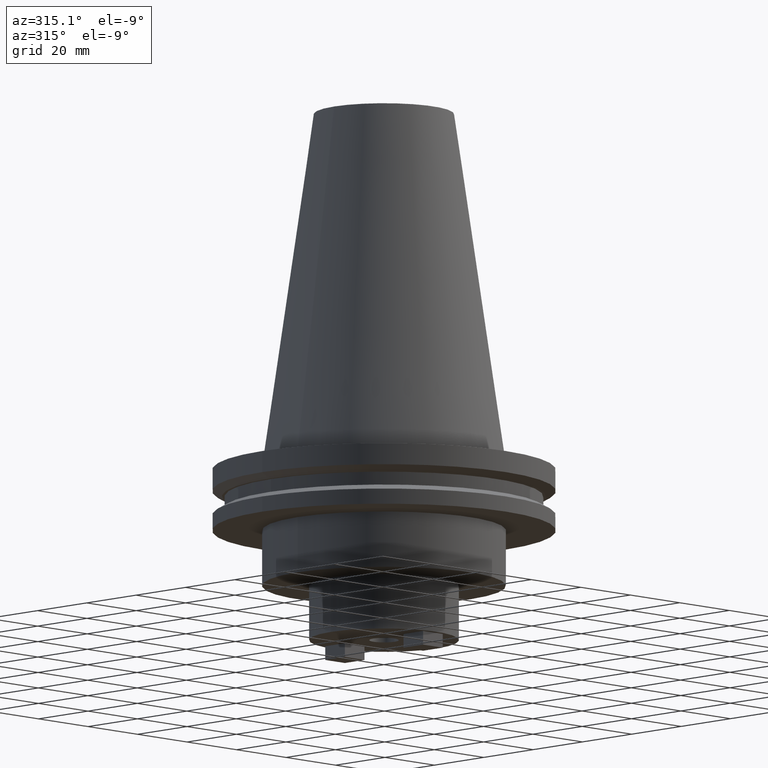
[diagram: clean part render]
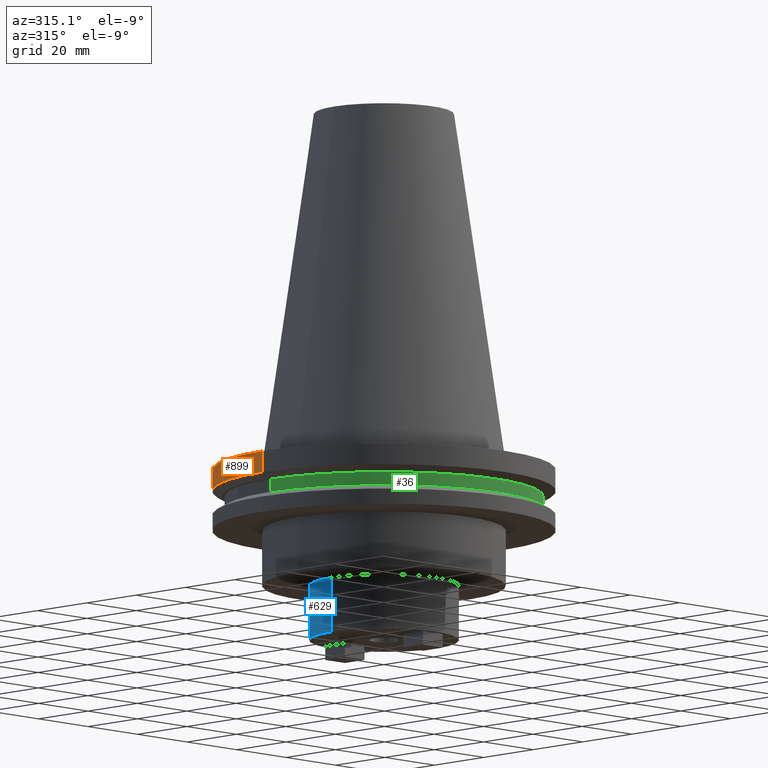
[diagram: same view with three faces highlighted in distinct colors, each labeled with its STEP entity id]
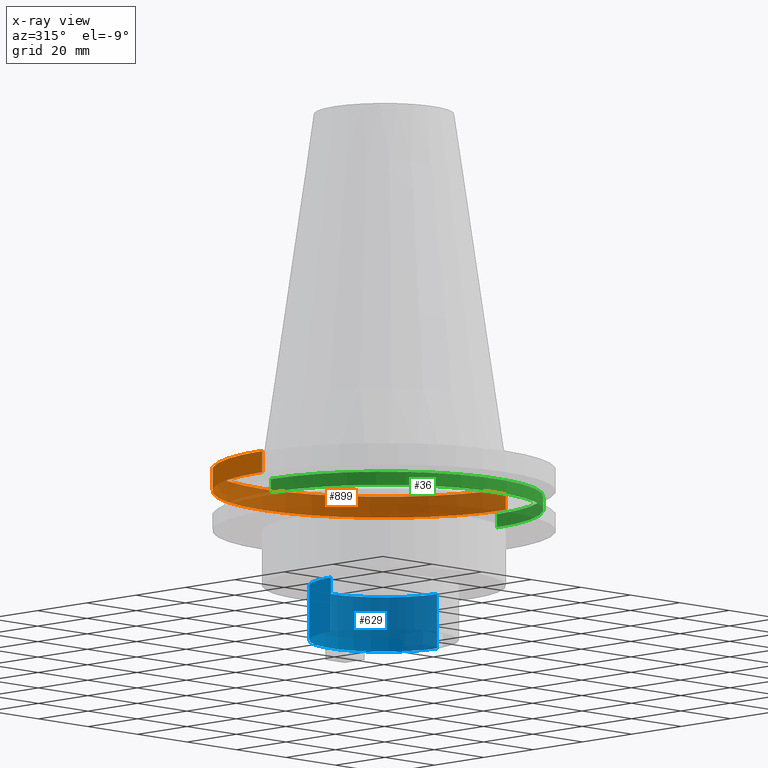
[diagram: x-ray of the same camera — body ghosted, the three highlighted faces saturated]
A machine part, auxiliary view with three faces highlighted in distinct colors.
The next image is the same camera in x-ray (body ghosted, the three faces saturated) — at least one of them is partly hidden behind the body in this view.
Their STEP definitions:

[orange] entity #899 — the highlighted cylindrical surface (partial cylindrical patch) has radius 49.215 mm, axis along (-0, -0, 1).
#7 = DIRECTION ( 'NONE',  ( 1.000000000000000000, 0.000000000000000000, 0.000000000000000000 ) ) ;
#25 = EDGE_CURVE ( 'NONE', #978, #831, #680, .T. ) ;
#29 = ORIENTED_EDGE ( 'NONE', *, *, #858, .F. ) ;
#48 = CARTESIAN_POINT ( 'NONE',  ( 49.21499999999999631, 0.000000000000000000, -1.499999999999987566 ) ) ;
#94 = EDGE_LOOP ( 'NONE', ( #671, #227, #453, #29 ) ) ;
#154 = DIRECTION ( 'NONE',  ( -0.000000000000000000, -0.000000000000000000, 1.000000000000000000 ) ) ;
#156 = LINE ( 'NONE', #590, #1015 ) ;
#185 = EDGE_CURVE ( 'NONE', #795, #831, #156, .T. ) ;
#227 = ORIENTED_EDGE ( 'NONE', *, *, #185, .T. ) ;
#233 = EDGE_CURVE ( 'NONE', #777, #795, #479, .T. ) ;
#245 = DIRECTION ( 'NONE',  ( -0.000000000000000000, -0.000000000000000000, 1.000000000000000000 ) ) ;
#254 = AXIS2_PLACEMENT_3D ( 'NONE', #802, #1056, #301 ) ;
#301 = DIRECTION ( 'NONE',  ( 1.000000000000000000, 0.000000000000000000, 0.000000000000000000 ) ) ;
#312 = CYLINDRICAL_SURFACE ( 'NONE', #1017, 49.21499999999999631 ) ;
#341 = CARTESIAN_POINT ( 'NONE',  ( 0.000000000000000000, 0.000000000000000000, -7.602389855251287187 ) ) ;
#361 = CARTESIAN_POINT ( 'NONE',  ( 49.21500000000000341, 0.000000000000000000, -7.602389855251287187 ) ) ;
#446 = AXIS2_PLACEMENT_3D ( 'NONE', #341, #765, #7 ) ;
#451 = LINE ( 'NONE', #797, #933 ) ;
#453 = ORIENTED_EDGE ( 'NONE', *, *, #25, .F. ) ;
#479 = CIRCLE ( 'NONE', #446, 49.21500000000000341 ) ;
#567 = DIRECTION ( 'NONE',  ( -0.000000000000000000, -0.000000000000000000, 1.000000000000000000 ) ) ;
#575 = DIRECTION ( 'NONE',  ( 1.000000000000000000, 0.000000000000000000, 0.000000000000000000 ) ) ;
#590 = CARTESIAN_POINT ( 'NONE',  ( -49.21499999999999631, 6.027099222003697826E-15, 101.5999999999999943 ) ) ;
#650 = CARTESIAN_POINT ( 'NONE',  ( 0.000000000000000000, 0.000000000000000000, 101.5999999999999943 ) ) ;
#671 = ORIENTED_EDGE ( 'NONE', *, *, #233, .T. ) ;
#680 = CIRCLE ( 'NONE', #254, 49.21499999999999631 ) ;
#730 = FACE_OUTER_BOUND ( 'NONE', #94, .T. ) ;
#765 = DIRECTION ( 'NONE',  ( -0.000000000000000000, -0.000000000000000000, 1.000000000000000000 ) ) ;
#777 = VERTEX_POINT ( 'NONE', #361 ) ;
#795 = VERTEX_POINT ( 'NONE', #969 ) ;
#797 = CARTESIAN_POINT ( 'NONE',  ( 49.21499999999999631, 0.000000000000000000, 101.5999999999999943 ) ) ;
#802 = CARTESIAN_POINT ( 'NONE',  ( 0.000000000000000000, 0.000000000000000000, -1.499999999999987566 ) ) ;
#831 = VERTEX_POINT ( 'NONE', #886 ) ;
#858 = EDGE_CURVE ( 'NONE', #777, #978, #451, .T. ) ;
#886 = CARTESIAN_POINT ( 'NONE',  ( -49.21499999999999631, 6.027099222003697826E-15, -1.499999999999987566 ) ) ;
#899 = ADVANCED_FACE ( 'NONE', ( #730 ), #312, .T. ) ;
#933 = VECTOR ( 'NONE', #567, 1000.000000000000000 ) ;
#969 = CARTESIAN_POINT ( 'NONE',  ( -49.21500000000000341, 6.027099222003699404E-15, -7.602389855251287187 ) ) ;
#978 = VERTEX_POINT ( 'NONE', #48 ) ;
#1015 = VECTOR ( 'NONE', #245, 1000.000000000000000 ) ;
#1017 = AXIS2_PLACEMENT_3D ( 'NONE', #650, #154, #575 ) ;
#1056 = DIRECTION ( 'NONE',  ( -0.000000000000000000, -0.000000000000000000, 1.000000000000000000 ) ) ;

[blue] entity #629 — the highlighted cylindrical surface (partial cylindrical patch) has radius 21.4503 mm, axis along (-0, -0, 1).
#4 = LINE ( 'NONE', #855, #114 ) ;
#19 = CARTESIAN_POINT ( 'NONE',  ( 21.45029999999999859, 0.000000000000000000, -50.79999999999999716 ) ) ;
#44 = CARTESIAN_POINT ( 'NONE',  ( 0.000000000000000000, 0.000000000000000000, -50.79999999999999716 ) ) ;
#69 = CARTESIAN_POINT ( 'NONE',  ( 21.45029999999999859, 0.000000000000000000, 0.000000000000000000 ) ) ;
#98 = FACE_OUTER_BOUND ( 'NONE', #1079, .T. ) ;
#114 = VECTOR ( 'NONE', #597, 1000.000000000000000 ) ;
#162 = CARTESIAN_POINT ( 'NONE',  ( -21.45029999999999859, 2.626904123575046818E-15, -50.79999999999999716 ) ) ;
#175 = ORIENTED_EDGE ( 'NONE', *, *, #818, .T. ) ;
#251 = AXIS2_PLACEMENT_3D ( 'NONE', #586, #666, #1080 ) ;
#253 = VERTEX_POINT ( 'NONE', #162 ) ;
#370 = DIRECTION ( 'NONE',  ( -0.000000000000000000, -0.000000000000000000, 1.000000000000000000 ) ) ;
#431 = ORIENTED_EDGE ( 'NONE', *, *, #557, .F. ) ;
#526 = ORIENTED_EDGE ( 'NONE', *, *, #706, .T. ) ;
#532 = VERTEX_POINT ( 'NONE', #739 ) ;
#537 = VECTOR ( 'NONE', #1071, 1000.000000000000000 ) ;
#557 = EDGE_CURVE ( 'NONE', #585, #600, #661, .T. ) ;
#585 = VERTEX_POINT ( 'NONE', #19 ) ;
#586 = CARTESIAN_POINT ( 'NONE',  ( 0.000000000000000000, 0.000000000000000000, -35.04999999999999716 ) ) ;
#597 = DIRECTION ( 'NONE',  ( -0.000000000000000000, -0.000000000000000000, 1.000000000000000000 ) ) ;
#600 = VERTEX_POINT ( 'NONE', #690 ) ;
#629 = ADVANCED_FACE ( 'NONE', ( #98 ), #776, .T. ) ;
#661 = LINE ( 'NONE', #69, #537 ) ;
#666 = DIRECTION ( 'NONE',  ( -0.000000000000000000, -0.000000000000000000, 1.000000000000000000 ) ) ;
#684 = DIRECTION ( 'NONE',  ( 1.000000000000000000, 0.000000000000000000, 0.000000000000000000 ) ) ;
#690 = CARTESIAN_POINT ( 'NONE',  ( 21.45029999999999859, 0.000000000000000000, -35.04999999999999716 ) ) ;
#700 = AXIS2_PLACEMENT_3D ( 'NONE', #44, #370, #1035 ) ;
#706 = EDGE_CURVE ( 'NONE', #253, #532, #4, .T. ) ;
#728 = CIRCLE ( 'NONE', #251, 21.45029999999999859 ) ;
#739 = CARTESIAN_POINT ( 'NONE',  ( -21.45029999999999859, 2.626904123575046818E-15, -35.04999999999999716 ) ) ;
#754 = AXIS2_PLACEMENT_3D ( 'NONE', #844, #1013, #684 ) ;
#776 = CYLINDRICAL_SURFACE ( 'NONE', #754, 21.45029999999999859 ) ;
#818 = EDGE_CURVE ( 'NONE', #585, #253, #983, .T. ) ;
#844 = CARTESIAN_POINT ( 'NONE',  ( 0.000000000000000000, 0.000000000000000000, 0.000000000000000000 ) ) ;
#855 = CARTESIAN_POINT ( 'NONE',  ( -21.45029999999999859, 2.626904123575046818E-15, 0.000000000000000000 ) ) ;
#939 = ORIENTED_EDGE ( 'NONE', *, *, #1018, .F. ) ;
#983 = CIRCLE ( 'NONE', #700, 21.45029999999999859 ) ;
#1013 = DIRECTION ( 'NONE',  ( -0.000000000000000000, -0.000000000000000000, 1.000000000000000000 ) ) ;
#1018 = EDGE_CURVE ( 'NONE', #600, #532, #728, .T. ) ;
#1035 = DIRECTION ( 'NONE',  ( 1.000000000000000000, 0.000000000000000000, 0.000000000000000000 ) ) ;
#1071 = DIRECTION ( 'NONE',  ( -0.000000000000000000, -0.000000000000000000, 1.000000000000000000 ) ) ;
#1079 = EDGE_LOOP ( 'NONE', ( #175, #526, #939, #431 ) ) ;
#1080 = DIRECTION ( 'NONE',  ( 1.000000000000000000, 0.000000000000000000, 0.000000000000000000 ) ) ;

[green] entity #36 — the highlighted cylindrical surface (partial cylindrical patch) has radius 45.645 mm, axis along (-0, -0, 1).
#36 = ADVANCED_FACE ( 'NONE', ( #826 ), #1062, .T. ) ;
#59 = ORIENTED_EDGE ( 'NONE', *, *, #1047, .F. ) ;
#139 = LINE ( 'NONE', #474, #616 ) ;
#149 = AXIS2_PLACEMENT_3D ( 'NONE', #263, #865, #604 ) ;
#219 = DIRECTION ( 'NONE',  ( 1.000000000000000000, 0.000000000000000000, 0.000000000000000000 ) ) ;
#263 = CARTESIAN_POINT ( 'NONE',  ( 0.000000000000000000, 0.000000000000000000, -13.05499999999999794 ) ) ;
#300 = EDGE_CURVE ( 'NONE', #1027, #1064, #554, .T. ) ;
#315 = ORIENTED_EDGE ( 'NONE', *, *, #528, .F. ) ;
#321 = CARTESIAN_POINT ( 'NONE',  ( -45.64500000000000313, 5.589900314708094957E-15, -9.204999999999991189 ) ) ;
#332 = DIRECTION ( 'NONE',  ( 1.000000000000000000, 0.000000000000000000, 0.000000000000000000 ) ) ;
#381 = DIRECTION ( 'NONE',  ( -0.000000000000000000, -0.000000000000000000, 1.000000000000000000 ) ) ;
#421 = VERTEX_POINT ( 'NONE', #720 ) ;
#474 = CARTESIAN_POINT ( 'NONE',  ( -45.64500000000000313, 5.589900314708094957E-15, 101.5999999999999943 ) ) ;
#516 = VERTEX_POINT ( 'NONE', #321 ) ;
#517 = AXIS2_PLACEMENT_3D ( 'NONE', #1045, #381, #219 ) ;
#528 = EDGE_CURVE ( 'NONE', #1027, #516, #139, .T. ) ;
#554 = CIRCLE ( 'NONE', #149, 45.64500000000000313 ) ;
#604 = DIRECTION ( 'NONE',  ( 1.000000000000000000, 0.000000000000000000, 0.000000000000000000 ) ) ;
#606 = DIRECTION ( 'NONE',  ( -0.000000000000000000, -0.000000000000000000, 1.000000000000000000 ) ) ;
#616 = VECTOR ( 'NONE', #817, 1000.000000000000000 ) ;
#669 = ORIENTED_EDGE ( 'NONE', *, *, #794, .T. ) ;
#712 = DIRECTION ( 'NONE',  ( -0.000000000000000000, -0.000000000000000000, 1.000000000000000000 ) ) ;
#720 = CARTESIAN_POINT ( 'NONE',  ( 45.64500000000000313, 0.000000000000000000, -9.204999999999991189 ) ) ;
#766 = EDGE_LOOP ( 'NONE', ( #315, #881, #669, #59 ) ) ;
#794 = EDGE_CURVE ( 'NONE', #1064, #421, #953, .T. ) ;
#805 = CARTESIAN_POINT ( 'NONE',  ( 45.64500000000000313, 0.000000000000000000, 101.5999999999999943 ) ) ;
#817 = DIRECTION ( 'NONE',  ( -0.000000000000000000, -0.000000000000000000, 1.000000000000000000 ) ) ;
#826 = FACE_OUTER_BOUND ( 'NONE', #766, .T. ) ;
#865 = DIRECTION ( 'NONE',  ( -0.000000000000000000, -0.000000000000000000, 1.000000000000000000 ) ) ;
#881 = ORIENTED_EDGE ( 'NONE', *, *, #300, .T. ) ;
#940 = CARTESIAN_POINT ( 'NONE',  ( 45.64500000000000313, 0.000000000000000000, -13.05499999999999794 ) ) ;
#945 = AXIS2_PLACEMENT_3D ( 'NONE', #1003, #606, #332 ) ;
#953 = LINE ( 'NONE', #805, #1032 ) ;
#1003 = CARTESIAN_POINT ( 'NONE',  ( 0.000000000000000000, 0.000000000000000000, -9.204999999999991189 ) ) ;
#1027 = VERTEX_POINT ( 'NONE', #1086 ) ;
#1032 = VECTOR ( 'NONE', #712, 1000.000000000000000 ) ;
#1044 = CIRCLE ( 'NONE', #945, 45.64500000000000313 ) ;
#1045 = CARTESIAN_POINT ( 'NONE',  ( 0.000000000000000000, 0.000000000000000000, 101.5999999999999943 ) ) ;
#1047 = EDGE_CURVE ( 'NONE', #516, #421, #1044, .T. ) ;
#1062 = CYLINDRICAL_SURFACE ( 'NONE', #517, 45.64500000000000313 ) ;
#1064 = VERTEX_POINT ( 'NONE', #940 ) ;
#1086 = CARTESIAN_POINT ( 'NONE',  ( -45.64500000000000313, 5.589900314708094957E-15, -13.05499999999999794 ) ) ;